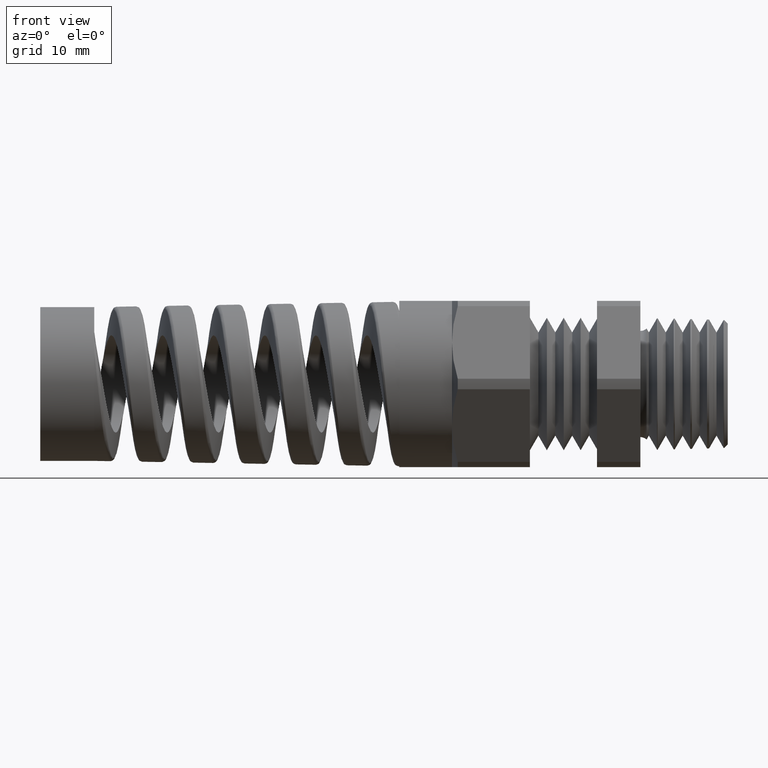
[diagram: clean part render]
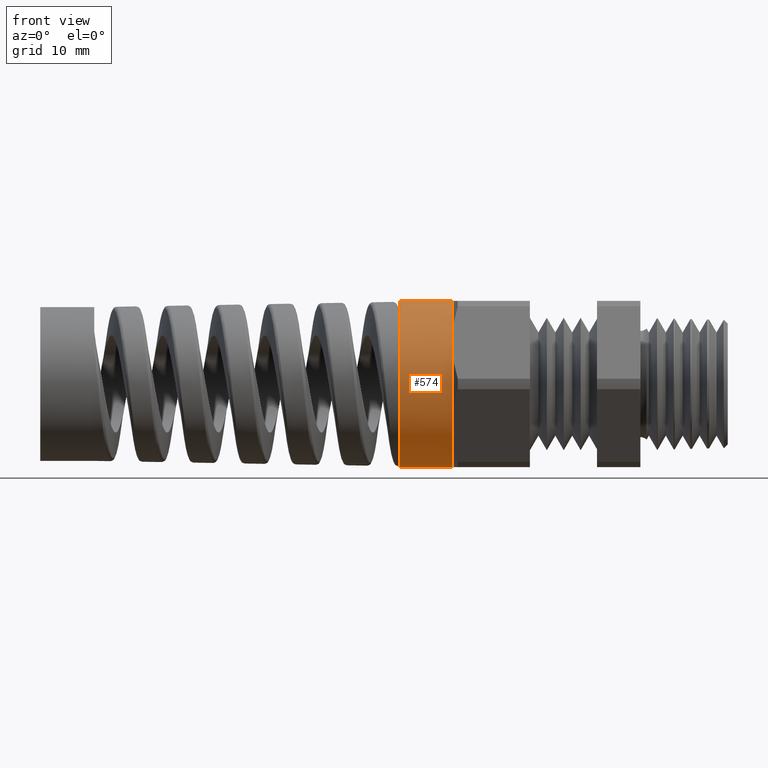
[diagram: same view with one face highlighted and labeled with its STEP entity id]
A machine part, front view. The second image highlights one B-rep face of the part: STEP entity #574.
In plain terms, the highlighted cylindrical surface (partial cylindrical patch) has radius 7.493 mm, axis along (-1, 0, 0).
Its self-contained STEP definition (entity closure, byte-faithful):
#330 = VERTEX_POINT ( 'NONE', #1783 ) ;
#517 = EDGE_CURVE ( 'NONE', #9844, #9682, #2068, .T. ) ;
#536 = EDGE_CURVE ( 'NONE', #9707, #330, #2050, .T. ) ;
#541 = EDGE_CURVE ( 'NONE', #330, #9844, #2103, .T. ) ;
#574 = ADVANCED_FACE ( 'NONE', ( #2124 ), #2123, .T. ) ;
#575 = EDGE_LOOP ( 'NONE', ( #576, #577, #578, #579, #580, #581 ) ) ;
#576 = ORIENTED_EDGE ( 'NONE', *, *, #9701, .F. ) ;
#577 = ORIENTED_EDGE ( 'NONE', *, *, #536, .T. ) ;
#578 = ORIENTED_EDGE ( 'NONE', *, *, #541, .T. ) ;
#579 = ORIENTED_EDGE ( 'NONE', *, *, #517, .T. ) ;
#580 = ORIENTED_EDGE ( 'NONE', *, *, #9671, .T. ) ;
#581 = ORIENTED_EDGE ( 'NONE', *, *, #582, .F. ) ;
#582 = EDGE_CURVE ( 'NONE', #9674, #9672, #2118, .T. ) ;
#1783 = CARTESIAN_POINT ( 'NONE',  ( -0.6687499999999999600, -0.2554774941164094100, -0.1475000000000001900 ) ) ;
#2049 = AXIS2_PLACEMENT_3D ( 'NONE', #2054, #2112, #2111 ) ;
#2050 = CIRCLE ( 'NONE', #2049, 0.2949999999999999800 ) ;
#2054 = CARTESIAN_POINT ( 'NONE',  ( -0.6687499999999999600, 0.0000000000000000000, 0.0000000000000000000 ) ) ;
#2064 = DIRECTION ( 'NONE',  ( 0.0000000000000000000, 0.0000000000000000000, 1.000000000000000000 ) ) ;
#2065 = DIRECTION ( 'NONE',  ( -1.000000000000000000, 0.0000000000000000000, 0.0000000000000000000 ) ) ;
#2066 = CARTESIAN_POINT ( 'NONE',  ( -0.6687499999999999600, 0.0000000000000000000, 0.0000000000000000000 ) ) ;
#2067 = AXIS2_PLACEMENT_3D ( 'NONE', #2066, #2065, #2064 ) ;
#2068 = CIRCLE ( 'NONE', #2067, 0.2949999999999999800 ) ;
#2100 = DIRECTION ( 'NONE',  ( 0.0000000000000000000, 0.0000000000000000000, 1.000000000000000000 ) ) ;
#2101 = DIRECTION ( 'NONE',  ( -1.000000000000000000, 0.0000000000000000000, 0.0000000000000000000 ) ) ;
#2102 = AXIS2_PLACEMENT_3D ( 'NONE', #2108, #2101, #2100 ) ;
#2103 = CIRCLE ( 'NONE', #2102, 0.2949999999999999800 ) ;
#2108 = CARTESIAN_POINT ( 'NONE',  ( -0.6687499999999999600, 0.0000000000000000000, 0.0000000000000000000 ) ) ;
#2111 = DIRECTION ( 'NONE',  ( 0.0000000000000000000, 0.0000000000000000000, 1.000000000000000000 ) ) ;
#2112 = DIRECTION ( 'NONE',  ( -1.000000000000000000, 0.0000000000000000000, 0.0000000000000000000 ) ) ;
#2115 = DIRECTION ( 'NONE',  ( 0.0000000000000000000, 0.0000000000000000000, 1.000000000000000000 ) ) ;
#2116 = DIRECTION ( 'NONE',  ( -1.000000000000000000, 0.0000000000000000000, 0.0000000000000000000 ) ) ;
#2117 = AXIS2_PLACEMENT_3D ( 'NONE', #2122, #2116, #2115 ) ;
#2118 = CIRCLE ( 'NONE', #2117, 0.2950000000000000400 ) ;
#2119 = DIRECTION ( 'NONE',  ( 0.0000000000000000000, 0.0000000000000000000, 1.000000000000000000 ) ) ;
#2120 = DIRECTION ( 'NONE',  ( -1.000000000000000000, 0.0000000000000000000, 0.0000000000000000000 ) ) ;
#2121 = AXIS2_PLACEMENT_3D ( 'NONE', #2129, #2120, #2119 ) ;
#2122 = CARTESIAN_POINT ( 'NONE',  ( -0.8560352248470227700, 0.0000000000000000000, 0.0000000000000000000 ) ) ;
#2123 = CYLINDRICAL_SURFACE ( 'NONE', #2121, 0.2949999999999999800 ) ;
#2124 = FACE_OUTER_BOUND ( 'NONE', #575, .T. ) ;
#2129 = CARTESIAN_POINT ( 'NONE',  ( -0.7238591030180623300, 0.0000000000000000000, 0.0000000000000000000 ) ) ;
#9379 = CARTESIAN_POINT ( 'NONE',  ( -0.6687499999999999600, 0.0000000000000000000, 0.2949999999999999800 ) ) ;
#9388 = CARTESIAN_POINT ( 'NONE',  ( -0.8560352248470227700, 3.612708057484693200E-017, -0.2950000000000001000 ) ) ;
#9389 = CARTESIAN_POINT ( 'NONE',  ( -0.8560352248470227700, 0.0000000000000000000, 0.2950000000000000400 ) ) ;
#9390 = DIRECTION ( 'NONE',  ( -1.000000000000000000, 0.0000000000000000000, 0.0000000000000000000 ) ) ;
#9391 = VECTOR ( 'NONE', #9390, 39.37007874015748100 ) ;
#9392 = CARTESIAN_POINT ( 'NONE',  ( -0.7238591030180623300, 0.0000000000000000000, 0.2949999999999999800 ) ) ;
#9393 = LINE ( 'NONE', #9392, #9391 ) ;
#9448 = CARTESIAN_POINT ( 'NONE',  ( -0.6687499999999999600, 0.0000000000000000000, -0.2949999999999999800 ) ) ;
#9454 = DIRECTION ( 'NONE',  ( -1.000000000000000000, 0.0000000000000000000, 0.0000000000000000000 ) ) ;
#9455 = VECTOR ( 'NONE', #9454, 39.37007874015748100 ) ;
#9456 = CARTESIAN_POINT ( 'NONE',  ( -0.7238591030180623300, 3.612708057484692000E-017, -0.2949999999999999800 ) ) ;
#9457 = LINE ( 'NONE', #9456, #9455 ) ;
#9487 = CARTESIAN_POINT ( 'NONE',  ( -0.6687499999999999600, -0.2554774941164093000, 0.1475000000000001600 ) ) ;
#9671 = EDGE_CURVE ( 'NONE', #9682, #9672, #9393, .T. ) ;
#9672 = VERTEX_POINT ( 'NONE', #9389 ) ;
#9674 = VERTEX_POINT ( 'NONE', #9388 ) ;
#9682 = VERTEX_POINT ( 'NONE', #9379 ) ;
#9701 = EDGE_CURVE ( 'NONE', #9707, #9674, #9457, .T. ) ;
#9707 = VERTEX_POINT ( 'NONE', #9448 ) ;
#9844 = VERTEX_POINT ( 'NONE', #9487 ) ;